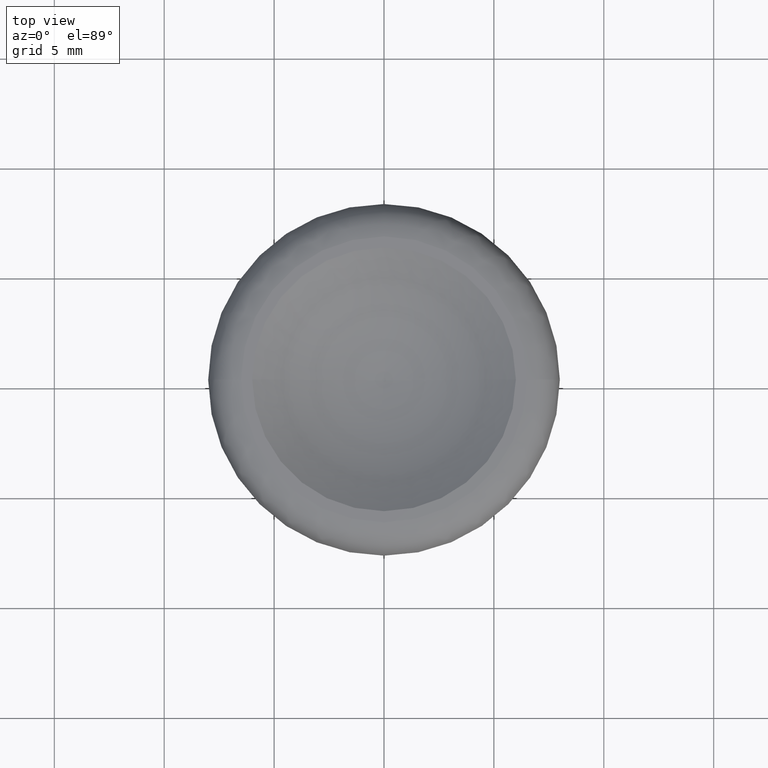
[diagram: clean part render]
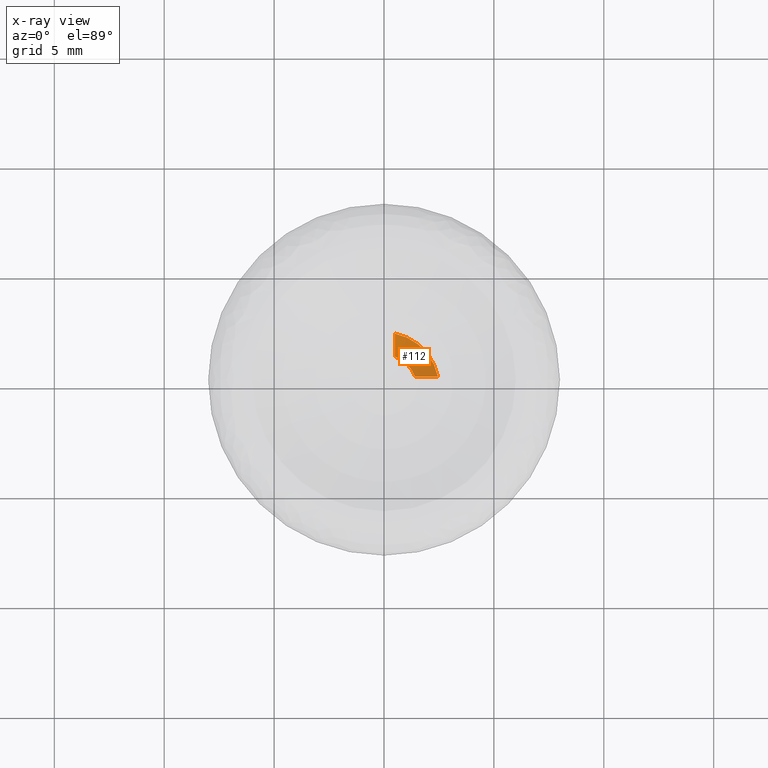
[diagram: x-ray — body ghosted, one internal face saturated and labeled with its STEP entity id]
A machine part, top view, then the same camera in x-ray: the body is ghosted and one INTERNAL B-rep face — a face not visible from any outside direction — is saturated and labeled: STEP entity #112.
In plain terms, the highlighted face is a freeform B-spline surface patch.
Its self-contained STEP definition (entity closure, byte-faithful):
#112=ADVANCED_FACE('',(#196),#195,.F.);
#195=( BOUNDED_SURFACE() B_SPLINE_SURFACE( 2,1,((#1031,#1032),(#1033,#1034),(#1035,#1036)), .UNSPECIFIED.,.F.,.F.,.F.) B_SPLINE_SURFACE_WITH_KNOTS((3,3),(2,2),(0.00000000000E+00,1.00000000000E+00),(0.00000000000E+00,1.00000000000E+00), .UNSPECIFIED. ) GEOMETRIC_REPRESENTATION_ITEM() RATIONAL_B_SPLINE_SURFACE(((1.00000000000E+00,1.00000000000E+00),(8.34046480557E-01,8.34046480557E-01),(1.00000000000E+00,1.00000000000E+00))) REPRESENTATION_ITEM('') SURFACE() );
#196=FACE_OUTER_BOUND('',#1037,.T.);
#1031=CARTESIAN_POINT('',(0.00000000000E+00,0.00000000000E+00,-1.14003633768E+01));
#1032=CARTESIAN_POINT('',(3.39545307745E+00,6.91555707949E-01,-7.93520091329E+00));
#1033=CARTESIAN_POINT('',(0.00000000000E+00,0.00000000000E+00,-1.14003633768E+01));
#1034=CARTESIAN_POINT('',(2.93801183391E+00,2.93753569232E+00,-7.93520091329E+00));
#1035=CARTESIAN_POINT('',(0.00000000000E+00,0.00000000000E+00,-1.14003633768E+01));
#1036=CARTESIAN_POINT('',(6.92106019127E-01,3.39534094852E+00,-7.93520091329E+00));
#1037=EDGE_LOOP('',(#1698,#1699,#1700,#1701));
#1698=ORIENTED_EDGE('',*,*,#2102,.F.);
#1699=ORIENTED_EDGE('',*,*,#2103,.F.);
#1700=ORIENTED_EDGE('',*,*,#2104,.F.);
#1701=ORIENTED_EDGE('',*,*,#2105,.F.);
#2102=EDGE_CURVE('',#2304,#2305,#2306,.T.);
#2103=EDGE_CURVE('',#2312,#2304,#2313,.T.);
#2104=EDGE_CURVE('',#2319,#2312,#2320,.T.);
#2105=EDGE_CURVE('',#2305,#2319,#2326,.T.);
#2304=VERTEX_POINT('',#3643);
#2305=VERTEX_POINT('',#3644);
#2306=CIRCLE('',#3648,2.50000000000E+00);
#2312=VERTEX_POINT('',#3649);
#2313=(BOUNDED_CURVE() B_SPLINE_CURVE(3,(#3650,#3651,#3652,#3653),.UNSPECIFIED.,.F.,.F.) B_SPLINE_CURVE_WITH_KNOTS((4,4),(7.11021556215E-04,2.15017625232E-03),.UNSPECIFIED.) CURVE() GEOMETRIC_REPRESENTATION_ITEM() RATIONAL_B_SPLINE_CURVE((1.00000000000E+00,1.00000000000E+00,1.00000000000E+00,1.00000000000E+00)) REPRESENTATION_ITEM('') );
#2319=VERTEX_POINT('',#3654);
#2320=CIRCLE('',#3658,1.50008149445E+00);
#2326=(BOUNDED_CURVE() B_SPLINE_CURVE(3,(#3659,#3660,#3661,#3662),.UNSPECIFIED.,.F.,.F.) B_SPLINE_CURVE_WITH_KNOTS((4,4),(6.51346346597E-04,2.09060161537E-03),.UNSPECIFIED.) CURVE() GEOMETRIC_REPRESENTATION_ITEM() RATIONAL_B_SPLINE_CURVE((1.00000000000E+00,1.00000000000E+00,1.00000000000E+00,1.00000000000E+00)) REPRESENTATION_ITEM('') );
#3643=CARTESIAN_POINT('',(5.00000000000E-01,2.44948974278E+00,-8.90036337678E+00));
#3644=CARTESIAN_POINT('',(2.44948974278E+00,5.00000000000E-01,-8.90036337678E+00));
#3645=CARTESIAN_POINT('',(0.00000000000E+00,0.00000000000E+00,-8.90036337678E+00));
#3646=DIRECTION('',(0.00000000000E+00,0.00000000000E+00,-1.00000000000E+00));
#3647=DIRECTION('',(1.00000000000E+00,-0.00000000000E+00,-0.00000000000E+00));
#3648=AXIS2_PLACEMENT_3D('',#3645,#3646,#3647);
#3649=CARTESIAN_POINT('',(5.00000000000E-01,1.41430000000E+00,-9.90028188233E+00));
#3650=CARTESIAN_POINT('',(5.00000000000E-01,1.41430000000E+00,-9.90028188233E+00));
#3651=CARTESIAN_POINT('',(5.00000000000E-01,1.76336938123E+00,-9.57117387874E+00));
#3652=CARTESIAN_POINT('',(5.00000000000E-01,2.10680815515E+00,-9.23612139036E+00));
#3653=CARTESIAN_POINT('',(5.00000000000E-01,2.44948974278E+00,-8.90036337678E+00));
#3654=CARTESIAN_POINT('',(1.41430000000E+00,5.00000000000E-01,-9.90028188233E+00));
#3655=CARTESIAN_POINT('',(0.00000000000E+00,0.00000000000E+00,-9.90028188233E+00));
#3656=DIRECTION('',(-0.00000000000E+00,0.00000000000E+00,1.00000000000E+00));
#3657=DIRECTION('',(-1.00000000000E+00,-0.00000000000E+00,-0.00000000000E+00));
#3658=AXIS2_PLACEMENT_3D('',#3655,#3656,#3657);
#3659=CARTESIAN_POINT('',(2.44948974278E+00,5.00000000000E-01,-8.90036337678E+00));
#3660=CARTESIAN_POINT('',(2.10680815515E+00,5.00000000000E-01,-9.23612139036E+00));
#3661=CARTESIAN_POINT('',(1.76336938123E+00,5.00000000000E-01,-9.57117387874E+00));
#3662=CARTESIAN_POINT('',(1.41430000000E+00,5.00000000000E-01,-9.90028188233E+00));